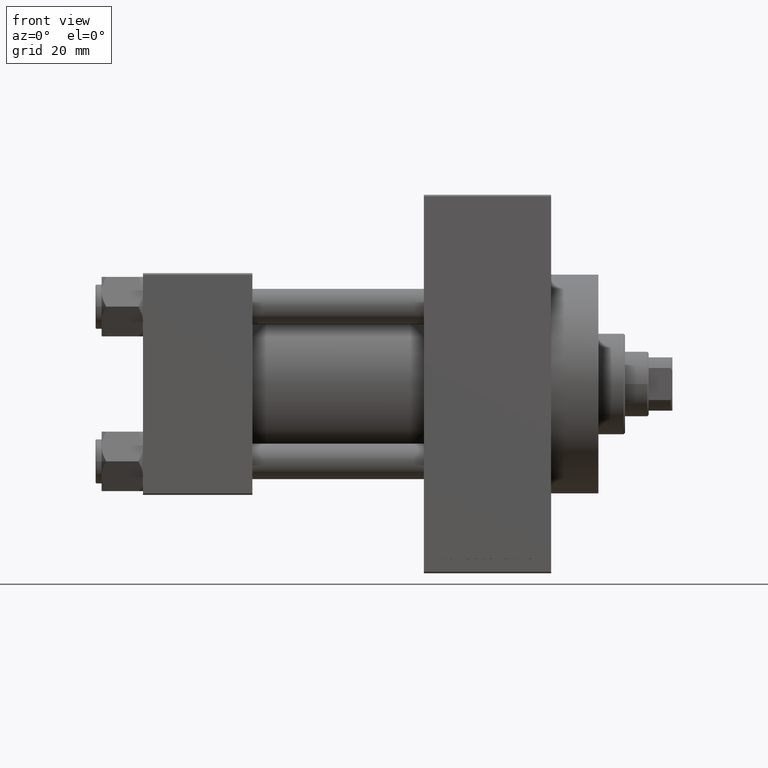
[diagram: clean part render]
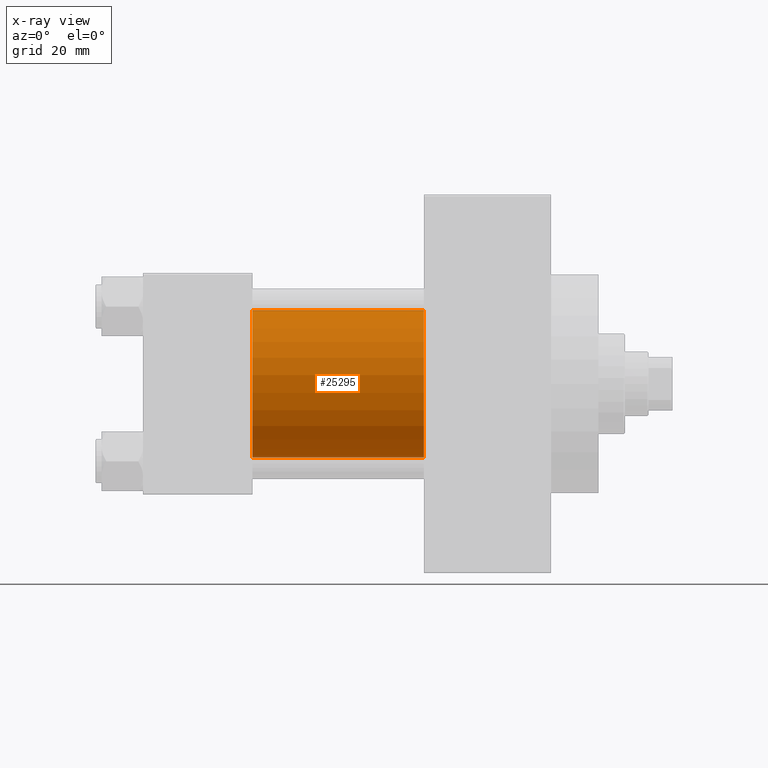
[diagram: x-ray — body ghosted, one internal face saturated and labeled with its STEP entity id]
A machine part, front view, then the same camera in x-ray: the body is ghosted and one INTERNAL B-rep face — a face not visible from any outside direction — is saturated and labeled: STEP entity #25295.
In plain terms, the highlighted cylindrical surface (partial cylindrical patch) has radius 25 mm, axis along (-1, -0, -0).
Its self-contained STEP definition (entity closure, byte-faithful):
#289 = DIRECTION ( 'NONE',  ( 0.000000000000000000, 0.000000000000000000, -1.000000000000000000 ) ) ;
#1366 = AXIS2_PLACEMENT_3D ( 'NONE', #32354, #29367, #21173 ) ;
#2533 = FACE_OUTER_BOUND ( 'NONE', #48393, .T. ) ;
#2823 = ORIENTED_EDGE ( 'NONE', *, *, #33947, .T. ) ;
#3280 = DIRECTION ( 'NONE',  ( 1.000000000000000000, 0.000000000000000000, 0.000000000000000000 ) ) ;
#4821 = LINE ( 'NONE', #28582, #37457 ) ;
#5685 = ORIENTED_EDGE ( 'NONE', *, *, #40617, .F. ) ;
#9564 = VECTOR ( 'NONE', #38320, 1000.000000000000000 ) ;
#14686 = CARTESIAN_POINT ( 'NONE',  ( 95.00000000000000000, -2.602085213965210642E-15, 25.00000000000000000 ) ) ;
#16480 = CARTESIAN_POINT ( 'NONE',  ( 37.00000000000000000, 4.595317839031718093E-16, -25.00000000000000000 ) ) ;
#17464 = DIRECTION ( 'NONE',  ( 1.000000000000000000, 0.000000000000000000, 0.000000000000000000 ) ) ;
#19112 = ORIENTED_EDGE ( 'NONE', *, *, #37328, .T. ) ;
#19428 = LINE ( 'NONE', #20160, #9564 ) ;
#20160 = CARTESIAN_POINT ( 'NONE',  ( 95.00000000000000000, -2.602085213965210642E-15, 25.00000000000000000 ) ) ;
#20935 = DIRECTION ( 'NONE',  ( 0.000000000000000000, 0.000000000000000000, -1.000000000000000000 ) ) ;
#21173 = DIRECTION ( 'NONE',  ( 0.000000000000000000, 0.000000000000000000, 1.000000000000000000 ) ) ;
#21908 = CYLINDRICAL_SURFACE ( 'NONE', #1366, 25.00000000000000000 ) ;
#23685 = CARTESIAN_POINT ( 'NONE',  ( 95.00000000000000000, -2.602085213965210642E-15, 0.000000000000000000 ) ) ;
#25088 = ORIENTED_EDGE ( 'NONE', *, *, #34742, .F. ) ;
#25295 = ADVANCED_FACE ( 'NONE', ( #2533 ), #21908, .F. ) ;
#28582 = CARTESIAN_POINT ( 'NONE',  ( 95.00000000000000000, 4.595317839031718093E-16, -25.00000000000000000 ) ) ;
#28831 = DIRECTION ( 'NONE',  ( -1.000000000000000000, -0.000000000000000000, -0.000000000000000000 ) ) ;
#29367 = DIRECTION ( 'NONE',  ( -1.000000000000000000, -0.000000000000000000, -0.000000000000000000 ) ) ;
#31093 = CIRCLE ( 'NONE', #39825, 25.00000000000000000 ) ;
#32354 = CARTESIAN_POINT ( 'NONE',  ( 95.00000000000000000, -2.602085213965210642E-15, 0.000000000000000000 ) ) ;
#33947 = EDGE_CURVE ( 'NONE', #38625, #48976, #31093, .T. ) ;
#34521 = CARTESIAN_POINT ( 'NONE',  ( 37.00000000000000000, -2.602085213965210642E-15, 25.00000000000000000 ) ) ;
#34742 = EDGE_CURVE ( 'NONE', #38625, #47740, #19428, .T. ) ;
#37328 = EDGE_CURVE ( 'NONE', #48976, #47071, #4821, .T. ) ;
#37443 = CARTESIAN_POINT ( 'NONE',  ( 95.00000000000000000, 4.595317839031718093E-16, -25.00000000000000000 ) ) ;
#37457 = VECTOR ( 'NONE', #28831, 1000.000000000000000 ) ;
#38320 = DIRECTION ( 'NONE',  ( -1.000000000000000000, -0.000000000000000000, -0.000000000000000000 ) ) ;
#38625 = VERTEX_POINT ( 'NONE', #14686 ) ;
#39825 = AXIS2_PLACEMENT_3D ( 'NONE', #23685, #17464, #20935 ) ;
#40617 = EDGE_CURVE ( 'NONE', #47740, #47071, #44693, .T. ) ;
#40708 = AXIS2_PLACEMENT_3D ( 'NONE', #48525, #3280, #289 ) ;
#44693 = CIRCLE ( 'NONE', #40708, 25.00000000000000000 ) ;
#47071 = VERTEX_POINT ( 'NONE', #16480 ) ;
#47740 = VERTEX_POINT ( 'NONE', #34521 ) ;
#48393 = EDGE_LOOP ( 'NONE', ( #2823, #19112, #5685, #25088 ) ) ;
#48525 = CARTESIAN_POINT ( 'NONE',  ( 37.00000000000000000, -2.602085213965210642E-15, 0.000000000000000000 ) ) ;
#48976 = VERTEX_POINT ( 'NONE', #37443 ) ;